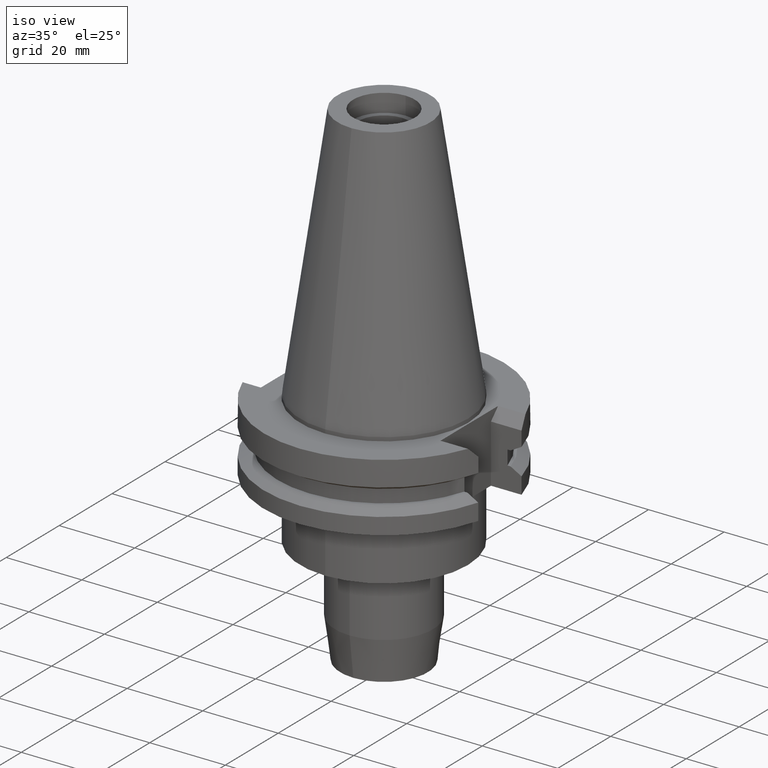
[diagram: clean part render]
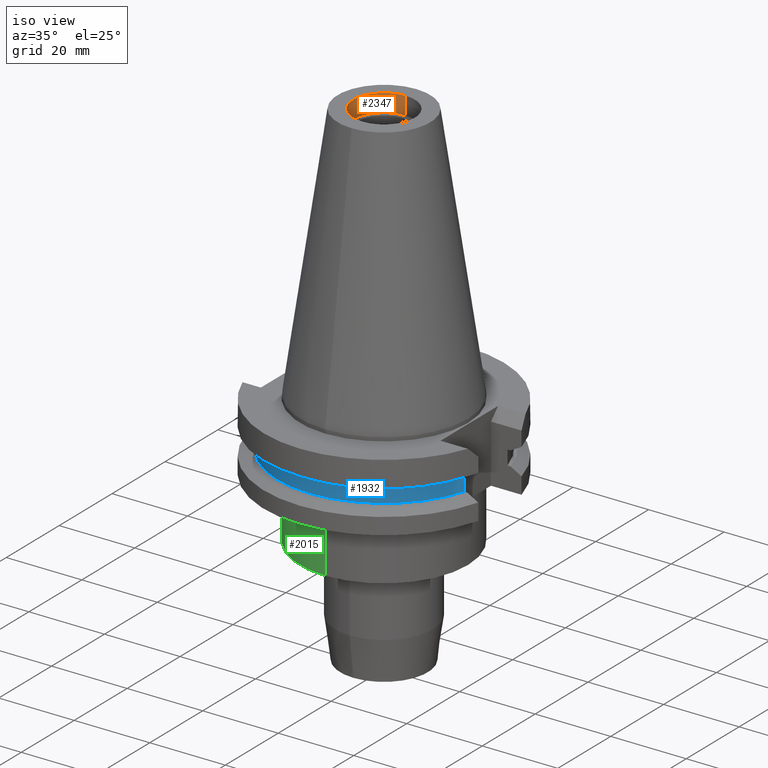
[diagram: same view with three faces highlighted in distinct colors, each labeled with its STEP entity id]
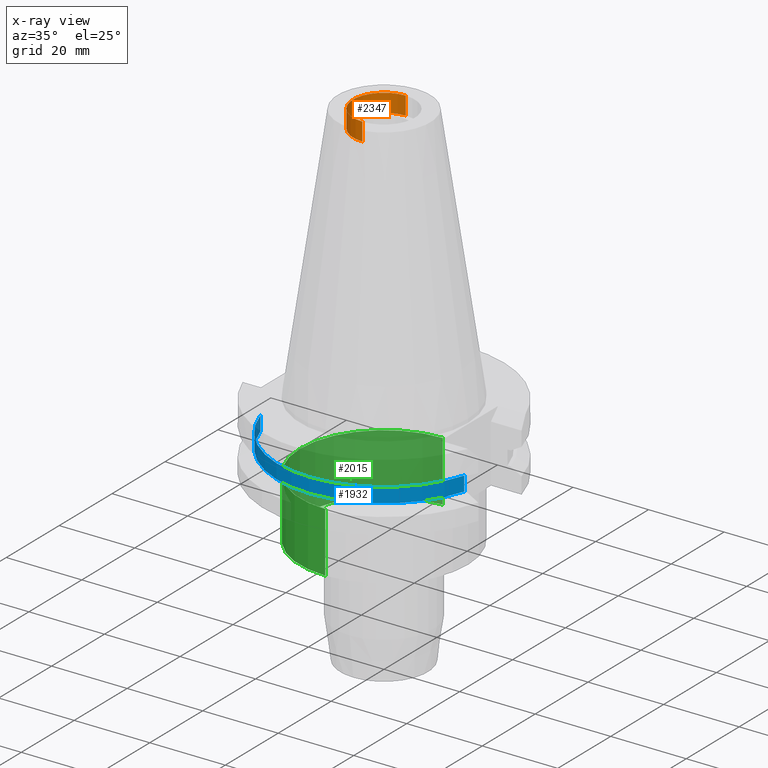
[diagram: x-ray of the same camera — body ghosted, the three highlighted faces saturated]
A machine part, iso view with three faces highlighted in distinct colors.
The next image is the same camera in x-ray (body ghosted, the three faces saturated) — at least one of them is partly hidden behind the body in this view.
Their STEP definitions:

[orange] entity #2347 — the highlighted cylindrical surface (partial cylindrical patch) has radius 8.16 mm, axis along (0, 0, 1).
#1134=CARTESIAN_POINT('',(0.E0,0.E0,6.347E1));
#1135=DIRECTION('',(0.E0,0.E0,-1.E0));
#1136=DIRECTION('',(0.E0,-1.E0,0.E0));
#1137=AXIS2_PLACEMENT_3D('',#1134,#1135,#1136);
#1166=DIRECTION('',(0.E0,0.E0,1.E0));
#1167=VECTOR('',#1166,4.78E0);
#1168=CARTESIAN_POINT('',(0.E0,-8.16E0,6.347E1));
#1169=LINE('',#1168,#1167);
#1173=DIRECTION('',(0.E0,0.E0,1.E0));
#1174=VECTOR('',#1173,4.78E0);
#1175=CARTESIAN_POINT('',(0.E0,8.16E0,6.347E1));
#1176=LINE('',#1175,#1174);
#1204=CARTESIAN_POINT('',(0.E0,0.E0,6.825E1));
#1205=DIRECTION('',(0.E0,0.E0,1.E0));
#1206=DIRECTION('',(0.E0,1.E0,0.E0));
#1207=AXIS2_PLACEMENT_3D('',#1204,#1205,#1206);
#1324=CARTESIAN_POINT('',(0.E0,-8.16E0,6.347E1));
#1325=CARTESIAN_POINT('',(0.E0,8.16E0,6.347E1));
#1326=VERTEX_POINT('',#1324);
#1327=VERTEX_POINT('',#1325);
#1328=CARTESIAN_POINT('',(0.E0,8.16E0,6.825E1));
#1329=VERTEX_POINT('',#1328);
#1330=CARTESIAN_POINT('',(0.E0,-8.16E0,6.825E1));
#1331=VERTEX_POINT('',#1330);
#2333=CARTESIAN_POINT('',(0.E0,0.E0,-7.00875E1));
#2334=DIRECTION('',(0.E0,0.E0,1.E0));
#2335=DIRECTION('',(0.E0,1.E0,0.E0));
#2336=AXIS2_PLACEMENT_3D('',#2333,#2334,#2335);
#2337=CYLINDRICAL_SURFACE('',#2336,8.16E0);
#2339=ORIENTED_EDGE('',*,*,#2338,.F.);
#2340=ORIENTED_EDGE('',*,*,#2322,.F.);
#2342=ORIENTED_EDGE('',*,*,#2341,.T.);
#2344=ORIENTED_EDGE('',*,*,#2343,.F.);
#2345=EDGE_LOOP('',(#2339,#2340,#2342,#2344));
#2346=FACE_OUTER_BOUND('',#2345,.F.);
#1138=CIRCLE('',#1137,8.16E0);
#1208=CIRCLE('',#1207,8.16E0);
#2322=EDGE_CURVE('',#1326,#1327,#1138,.T.);
#2338=EDGE_CURVE('',#1327,#1329,#1176,.T.);
#2341=EDGE_CURVE('',#1326,#1331,#1169,.T.);
#2343=EDGE_CURVE('',#1329,#1331,#1208,.T.);
#2347=ADVANCED_FACE('',(#2346),#2337,.F.);

[blue] entity #1932 — the highlighted cylindrical surface (partial cylindrical patch) has radius 28.18 mm, axis along (0, 0, 1).
#678=CARTESIAN_POINT('',(0.E0,0.E0,-9.2075E0));
#679=DIRECTION('',(0.E0,0.E0,-1.E0));
#680=DIRECTION('',(9.568350128908E-1,-2.906316536551E-1,0.E0));
#681=AXIS2_PLACEMENT_3D('',#678,#679,#680);
#686=CARTESIAN_POINT('',(0.E0,0.E0,-9.2075E0));
#687=DIRECTION('',(0.E0,0.E0,-1.E0));
#688=DIRECTION('',(0.E0,-1.E0,0.E0));
#689=AXIS2_PLACEMENT_3D('',#686,#687,#688);
#717=DIRECTION('',(0.E0,0.E0,-1.E0));
#718=VECTOR('',#717,3.84E0);
#719=CARTESIAN_POINT('',(2.696361066326E1,-8.19E0,-9.2075E0));
#720=LINE('',#719,#718);
#724=DIRECTION('',(0.E0,0.E0,1.E0));
#725=VECTOR('',#724,3.84E0);
#726=CARTESIAN_POINT('',(-2.696361066326E1,-8.19E0,-1.30475E1));
#727=LINE('',#726,#725);
#754=CARTESIAN_POINT('',(0.E0,0.E0,-1.30475E1));
#755=DIRECTION('',(0.E0,0.E0,1.E0));
#756=DIRECTION('',(-9.568350128908E-1,-2.906316536551E-1,0.E0));
#757=AXIS2_PLACEMENT_3D('',#754,#755,#756);
#762=CARTESIAN_POINT('',(0.E0,0.E0,-1.30475E1));
#763=DIRECTION('',(0.E0,0.E0,1.E0));
#764=DIRECTION('',(0.E0,-1.E0,0.E0));
#765=AXIS2_PLACEMENT_3D('',#762,#763,#764);
#1361=CARTESIAN_POINT('',(2.696361066326E1,-8.19E0,-1.30475E1));
#1362=VERTEX_POINT('',#1361);
#1363=CARTESIAN_POINT('',(2.696361066326E1,-8.19E0,-9.2075E0));
#1364=VERTEX_POINT('',#1363);
#1378=CARTESIAN_POINT('',(-2.696361066326E1,-8.19E0,-9.2075E0));
#1379=VERTEX_POINT('',#1378);
#1380=CARTESIAN_POINT('',(-2.696361066326E1,-8.19E0,-1.30475E1));
#1381=VERTEX_POINT('',#1380);
#1401=CARTESIAN_POINT('',(4.351173924716E-14,-2.818E1,-1.30475E1));
#1402=VERTEX_POINT('',#1401);
#1405=CARTESIAN_POINT('',(-6.305166448056E-14,-2.818E1,-9.2075E0));
#1406=VERTEX_POINT('',#1405);
#1917=CARTESIAN_POINT('',(0.E0,0.E0,-7.00875E1));
#1918=DIRECTION('',(0.E0,0.E0,1.E0));
#1919=DIRECTION('',(0.E0,1.E0,0.E0));
#1920=AXIS2_PLACEMENT_3D('',#1917,#1918,#1919);
#1921=CYLINDRICAL_SURFACE('',#1920,2.818E1);
#1922=ORIENTED_EDGE('',*,*,#1833,.T.);
#1924=ORIENTED_EDGE('',*,*,#1923,.F.);
#1926=ORIENTED_EDGE('',*,*,#1925,.F.);
#1927=ORIENTED_EDGE('',*,*,#1875,.T.);
#1928=ORIENTED_EDGE('',*,*,#1909,.F.);
#1929=ORIENTED_EDGE('',*,*,#1907,.F.);
#1930=EDGE_LOOP('',(#1922,#1924,#1926,#1927,#1928,#1929));
#1931=FACE_OUTER_BOUND('',#1930,.F.);
#682=CIRCLE('',#681,2.818E1);
#690=CIRCLE('',#689,2.818E1);
#758=CIRCLE('',#757,2.818E1);
#766=CIRCLE('',#765,2.818E1);
#1833=EDGE_CURVE('',#1364,#1362,#720,.T.);
#1875=EDGE_CURVE('',#1381,#1379,#727,.T.);
#1907=EDGE_CURVE('',#1364,#1406,#682,.T.);
#1909=EDGE_CURVE('',#1406,#1379,#690,.T.);
#1923=EDGE_CURVE('',#1402,#1362,#766,.T.);
#1925=EDGE_CURVE('',#1381,#1402,#758,.T.);
#1932=ADVANCED_FACE('',(#1931),#1921,.T.);

[green] entity #2015 — the highlighted cylindrical surface (partial cylindrical patch) has radius 22.225 mm, axis along (0, 0, 1).
#219=CARTESIAN_POINT('',(0.E0,0.E0,-1.905E1));
#220=DIRECTION('',(0.E0,0.E0,-1.E0));
#221=DIRECTION('',(0.E0,-1.E0,0.E0));
#222=AXIS2_PLACEMENT_3D('',#219,#220,#221);
#816=DIRECTION('',(0.E0,-3.118369373242E-14,-1.E0));
#817=VECTOR('',#816,1.595E1);
#818=CARTESIAN_POINT('',(0.E0,-2.2225E1,-1.905E1));
#819=LINE('',#818,#817);
#823=DIRECTION('',(0.E0,3.118369373242E-14,-1.E0));
#824=VECTOR('',#823,1.595E1);
#825=CARTESIAN_POINT('',(0.E0,2.2225E1,-1.905E1));
#826=LINE('',#825,#824);
#853=CARTESIAN_POINT('',(0.E0,0.E0,-3.5E1));
#854=DIRECTION('',(0.E0,0.E0,1.E0));
#855=DIRECTION('',(0.E0,1.E0,0.E0));
#856=AXIS2_PLACEMENT_3D('',#853,#854,#855);
#1268=CARTESIAN_POINT('',(0.E0,-2.2225E1,-1.905E1));
#1269=CARTESIAN_POINT('',(0.E0,2.2225E1,-1.905E1));
#1270=VERTEX_POINT('',#1268);
#1271=VERTEX_POINT('',#1269);
#1272=CARTESIAN_POINT('',(0.E0,2.2225E1,-3.5E1));
#1273=VERTEX_POINT('',#1272);
#1274=CARTESIAN_POINT('',(0.E0,-2.2225E1,-3.5E1));
#1275=VERTEX_POINT('',#1274);
#2001=CARTESIAN_POINT('',(0.E0,0.E0,-7.00875E1));
#2002=DIRECTION('',(0.E0,0.E0,1.E0));
#2003=DIRECTION('',(0.E0,1.E0,0.E0));
#2004=AXIS2_PLACEMENT_3D('',#2001,#2002,#2003);
#2005=CYLINDRICAL_SURFACE('',#2004,2.2225E1);
#2007=ORIENTED_EDGE('',*,*,#2006,.F.);
#2008=ORIENTED_EDGE('',*,*,#1552,.F.);
#2010=ORIENTED_EDGE('',*,*,#2009,.T.);
#2012=ORIENTED_EDGE('',*,*,#2011,.F.);
#2013=EDGE_LOOP('',(#2007,#2008,#2010,#2012));
#2014=FACE_OUTER_BOUND('',#2013,.F.);
#223=CIRCLE('',#222,2.2225E1);
#857=CIRCLE('',#856,2.2225E1);
#1552=EDGE_CURVE('',#1270,#1271,#223,.T.);
#2006=EDGE_CURVE('',#1271,#1273,#826,.T.);
#2009=EDGE_CURVE('',#1270,#1275,#819,.T.);
#2011=EDGE_CURVE('',#1273,#1275,#857,.T.);
#2015=ADVANCED_FACE('',(#2014),#2005,.T.);